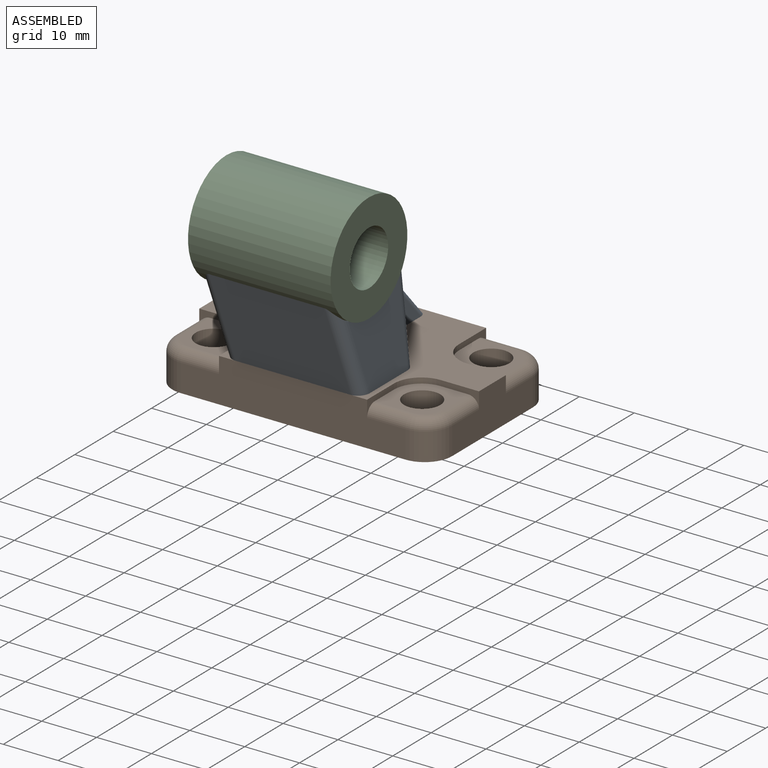
[diagram: assembled view]
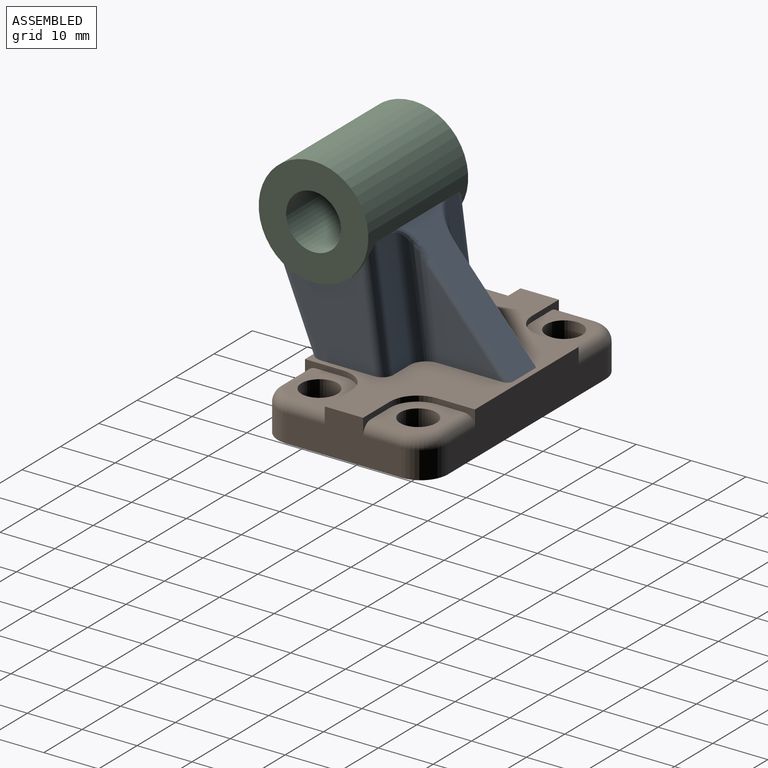
[diagram: assembled view, second angle]
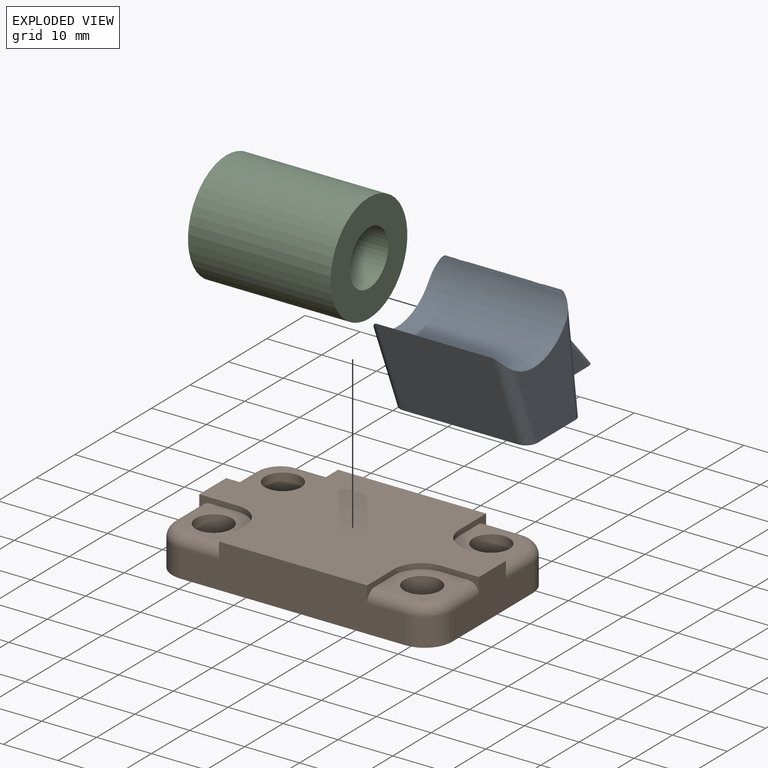
[diagram: exploded view]
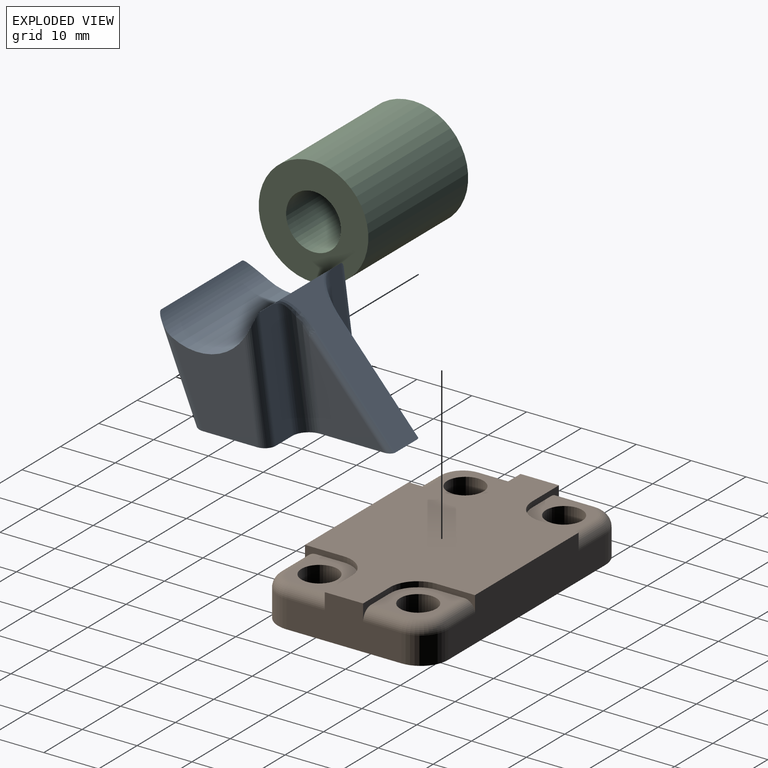
[diagram: exploded view, second angle]
ASSEMBLY  parts=3 mates=2
PART A: 20 faces, bbox 25.4x37.3x22.7 mm
  f0: plane 21x16.91mm, normal (0,-0.93,-0.38), area 383.4mm2, adj f2,f9,f11,f13
  f1: plane 15.49x13.75mm, normal (-1,0,0), area 90.1mm2, adj f2,f15,f16
  f2: plane 30.37x25.37mm, normal (0,0,-1), area 473mm2, adj f0,f1,f3,f4,f5,f6,f7,f8
  f3: plane 21.3x18.9mm, normal (0,0.75,0.66), area 172.7mm2, adj f2,f9,f16,f17,f18,f19
  f4: plane 15.49x13.75mm, normal (1,0,0), area 90.1mm2, adj f2,f14,f18
  f5: plane 21.4x3.1mm, normal (0,0.99,0.13), area 64.4mm2, adj f2,f9,f12,f15,f17
  f6: plane 17.36x15.52mm, normal (-1,0,0), area 161.9mm2, adj f2,f9,f12,f13
  f7: plane 21.4x4.4mm, normal (0,0.99,0.13), area 92.3mm2, adj f2,f9,f10,f14,f19
  f8: plane 17.36x15.52mm, normal (1,0,0), area 161.9mm2, adj f2,f9,f10,f11
  f9: cylinder r=10mm len=25mm, axis (-1,0,0), area 574.4mm2, adj f0,f3,f5,f6,f7,f8,f10,f11
  f10: cylinder r=2mm len=21.57mm, axis (0,-0.13,0.99), area 61.3mm2, adj f2,f7,f8,f9
  f11: cylinder r=2mm len=18.42mm, axis (0,0.38,-0.93), area 52.4mm2, adj f0,f2,f8,f9
  f12: cylinder r=2mm len=21.57mm, axis (0,-0.13,0.99), area 61.3mm2, adj f2,f5,f6,f9
  f13: cylinder r=2mm len=18.42mm, axis (0,-0.38,0.93), area 52.4mm2, adj f0,f2,f6,f9
  f14: cylinder r=3mm len=21.81mm, axis (0,0.13,-0.99), area 90.6mm2, adj f2,f4,f7,f19
  f15: cylinder r=3mm len=21.81mm, axis (0,-0.13,0.99), area 90.6mm2, adj f1,f2,f5,f17
  f16: cylinder r=1mm len=16.82mm, axis (0,-0.66,0.75), area 33.2mm2, adj f1,f2,f3,f17
  f17: bspline ~6.04x5.15mm, area 9.1mm2, adj f3,f5,f9,f15,f16
  f18: cylinder r=1mm len=16.82mm, axis (0,0.66,-0.75), area 33.2mm2, adj f2,f3,f4,f19
  f19: bspline ~6.04x5.15mm, area 9.1mm2, adj f3,f7,f9,f14,f18
PART B: 42 faces, bbox 51.8x31.8x8 mm
  f0: plane 10x10mm, normal (0,0,1), area 58.5mm2, adj f14,f15,f19,f23,f28,f29,f37
  f1: plane 10x10mm, normal (0,0,1), area 58.5mm2, adj f9,f10,f21,f25,f30,f31,f35
  f2: plane 10x10mm, normal (0,0,1), area 58.5mm2, adj f16,f17,f18,f22,f26,f27,f33
  f3: plane 21x8mm, normal (-1,0,0), area 126mm2, adj f7,f8,f9,f11,f31,f34,f38,f40
  f4: plane 41x8mm, normal (0,-1,0), area 286mm2, adj f7,f8,f10,f17,f27,f30,f32,f34
  f5: plane 21x8mm, normal (1,0,0), area 126mm2, adj f7,f8,f14,f16,f26,f29,f32,f36
  f6: plane 41x8mm, normal (0,1,0), area 286mm2, adj f7,f8,f12,f15,f28,f36,f38,f39
  f7: plane 51x31mm, normal (0,0,1), area 1026.5mm2, adj f3,f4,f5,f6,f9,f10,f11,f12
  f8: plane 51x31mm, normal (0,0,-1), area 1422.7mm2, adj f3,f4,f5,f6,f18,f19,f20,f21
  f9: plane 7x3mm, normal (0,-1,0), area 7.9mm2, adj f1,f3,f7,f25,f31
  f10: plane 7x3mm, normal (-1,0,0), area 7.9mm2, adj f1,f4,f7,f25,f30
  f11: plane 7x3mm, normal (0,1,0), area 7.9mm2, adj f3,f7,f13,f24,f40
  f12: plane 7x3mm, normal (-1,0,0), area 7.9mm2, adj f6,f7,f13,f24,f39
  f13: plane 10x10mm, normal (0,0,1), area 58.5mm2, adj f11,f12,f20,f24,f39,f40,f41
  f14: plane 7x3mm, normal (0,1,0), area 7.9mm2, adj f0,f5,f7,f23,f29
  f15: plane 7x3mm, normal (1,0,0), area 7.9mm2, adj f0,f6,f7,f23,f28
  f16: plane 7x3mm, normal (0,-1,0), area 7.9mm2, adj f2,f5,f7,f22,f26
  f17: plane 7x3mm, normal (1,0,0), area 7.9mm2, adj f2,f4,f7,f22,f27
  f18: cylinder r=3.3mm len=7mm, axis (0,0,1), area 145.1mm2, adj f2,f8
  f19: cylinder r=3.3mm len=7mm, axis (0,0,1), area 145.1mm2, adj f0,f8
  f20: cylinder r=3.3mm len=7mm, axis (0,0,1), area 145.1mm2, adj f8,f13
  f21: cylinder r=3.3mm len=7mm, axis (0,0,1), area 145.1mm2, adj f1,f8
  f22: cylinder r=5mm len=5mm, axis (0,0,1), area 7.9mm2, adj f2,f7,f16,f17
  f23: cylinder r=5mm len=5mm, axis (0,0,1), area 7.9mm2, adj f0,f7,f14,f15
  f24: cylinder r=5mm len=5mm, axis (0,0,1), area 7.9mm2, adj f7,f11,f12,f13
  f25: cylinder r=5mm len=5mm, axis (0,0,1), area 7.9mm2, adj f1,f7,f9,f10
  f26: cylinder r=2mm len=7mm, axis (0,-1,0), area 22mm2, adj f2,f5,f16,f33
  f27: cylinder r=2mm len=7mm, axis (-1,0,0), area 22mm2, adj f2,f4,f17,f33
  f28: cylinder r=2mm len=7mm, axis (1,0,0), area 22mm2, adj f0,f6,f15,f37
  f29: cylinder r=2mm len=7mm, axis (0,-1,0), area 22mm2, adj f0,f5,f14,f37
  f30: cylinder r=2mm len=7mm, axis (-1,0,0), area 22mm2, adj f1,f4,f10,f35
  f31: cylinder r=2mm len=7mm, axis (0,1,0), area 22mm2, adj f1,f3,f9,f35
  f32: cylinder r=5mm len=5mm, axis (0,0,-1), area 39.3mm2, adj f4,f5,f8,f33
  f33: torus R=3mm, axis (0,0,1), area 21.1mm2, adj f2,f26,f27,f32
  f34: cylinder r=5mm len=5mm, axis (0,0,1), area 39.3mm2, adj f3,f4,f8,f35
  f35: torus R=3mm, axis (0,0,1), area 21.1mm2, adj f1,f30,f31,f34
  f36: cylinder r=5mm len=5mm, axis (0,0,1), area 39.3mm2, adj f5,f6,f8,f37
  f37: torus R=3mm, axis (0,0,1), area 21.1mm2, adj f0,f28,f29,f36
  f38: cylinder r=5mm len=5mm, axis (0,0,-1), area 39.3mm2, adj f3,f6,f8,f41
  f39: cylinder r=2mm len=7mm, axis (1,0,0), area 22mm2, adj f6,f12,f13,f41
  f40: cylinder r=2mm len=7mm, axis (0,1,0), area 22mm2, adj f3,f11,f13,f41
  f41: torus R=3mm, axis (0,0,1), area 21.1mm2, adj f13,f38,f39,f40
PART C: 4 faces, bbox 20x26x20 mm
  f0: cylinder r=10mm len=26mm, axis (0,1,0), area 1633.6mm2, adj f1,f2
  f1: plane 20x20mm, normal (0,-1,0), area 235.6mm2, adj f0,f3
  f2: plane 20x20mm, normal (0,1,0), area 235.6mm2, adj f0,f3
  f3: cylinder r=5mm len=26mm, axis (0,1,0), area 816.8mm2, adj f1,f2
PLACE A t=(-12.45,-18.9,-0.8)mm
PLACE B t=(-25.45,-18.9,-8.8)mm
PLACE C rot(axis=(0,0,1),90deg) t=(-12.95,-17.69,21.97)mm
MATE fastened C.f0 <-> A.f9  axis (-1,0,0) through (0.05,-17.69,21.97)mm
MATE fastened A.f2 <-> B.f7  axis (0,0,-1) through (0.05,-18.9,-0.8)mm
